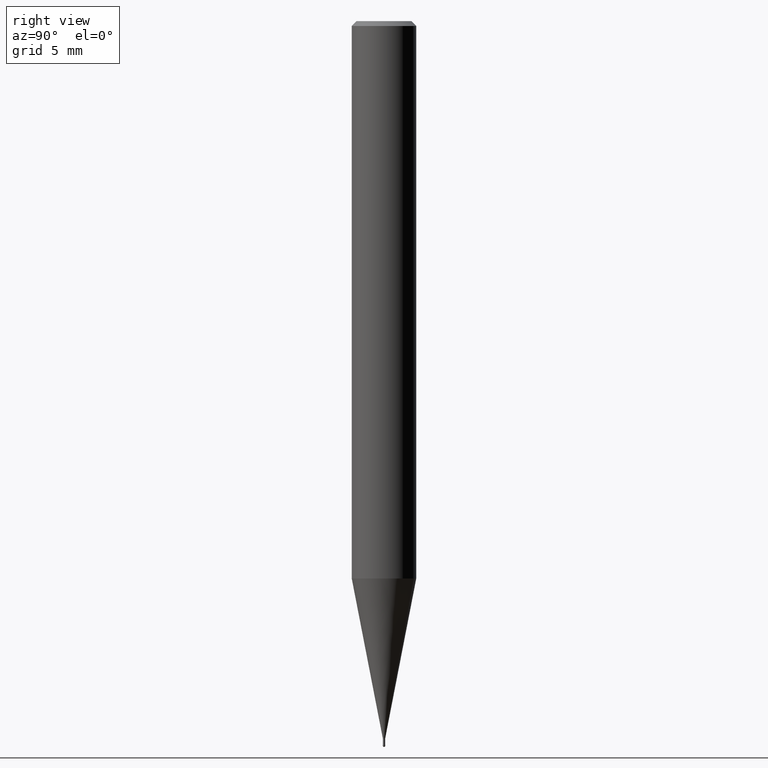
[diagram: clean part render]
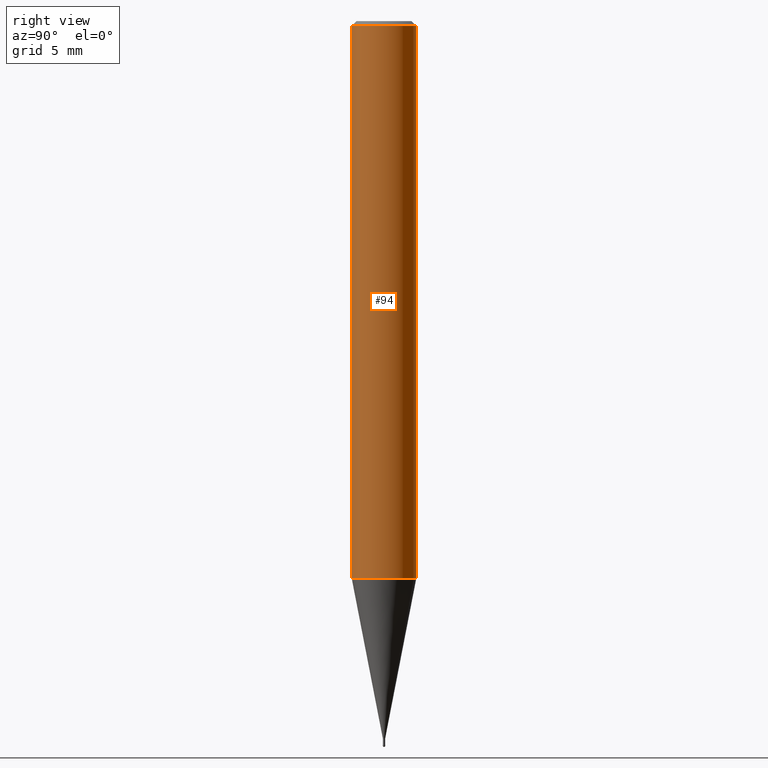
[diagram: same view with one face highlighted and labeled with its STEP entity id]
A machine part, right view. The second image highlights one B-rep face of the part: STEP entity #94.
In plain terms, the highlighted cylindrical surface (edge-blend (fillet) strip) has radius 2 mm, axis along (-0, -0, 1).
Its self-contained STEP definition (entity closure, byte-faithful):
#94=ADVANCED_FACE('',(#235),#236,.T.);
#104=EDGE_CURVE('',#114,#180,#247,.T.);
#114=VERTEX_POINT('',#258);
#138=EDGE_CURVE('',#114,#160,#287,.T.);
#146=EDGE_CURVE('',#204,#160,#296,.T.);
#152=EDGE_CURVE('',#180,#204,#303,.T.);
#160=VERTEX_POINT('',#311);
#180=VERTEX_POINT('',#334);
#204=VERTEX_POINT('',#361);
#235=FACE_OUTER_BOUND('',#385,.T.);
#236=CYLINDRICAL_SURFACE('',#386,2.0);
#247=LINE('',#401,#402);
#258=CARTESIAN_POINT('',(0.0,2.0,-0.299999999999997));
#287=CIRCLE('',#451,2.0);
#296=LINE('',#463,#464);
#303=CIRCLE('',#473,2.0);
#311=CARTESIAN_POINT('',(2.44921270764475E-016,-2.0,-0.299999999999997));
#334=CARTESIAN_POINT('',(0.0,2.0,-34.558));
#361=CARTESIAN_POINT('',(2.44921270764475E-016,-2.0,-34.558));
#385=EDGE_LOOP('',(#560,#561,#562,#563));
#386=AXIS2_PLACEMENT_3D('',#564,#565,#566);
#401=CARTESIAN_POINT('',(-2.44921270764475E-016,2.0,-17.429));
#402=VECTOR('',#584,1.0);
#451=AXIS2_PLACEMENT_3D('',#628,#629,#630);
#463=CARTESIAN_POINT('',(2.44921270764475E-016,-2.0,-17.429));
#464=VECTOR('',#638,1.0);
#473=AXIS2_PLACEMENT_3D('',#650,#651,#652);
#560=ORIENTED_EDGE('',*,*,#104,.F.);
#561=ORIENTED_EDGE('',*,*,#138,.T.);
#562=ORIENTED_EDGE('',*,*,#146,.F.);
#563=ORIENTED_EDGE('',*,*,#152,.F.);
#564=CARTESIAN_POINT('',(0.0,0.0,-17.429));
#565=DIRECTION('',(-0.0,-0.0,1.0));
#566=DIRECTION('',(0.0,1.0,0.0));
#584=DIRECTION('',(0.0,0.0,-1.0));
#628=CARTESIAN_POINT('',(0.0,0.0,-0.299999999999997));
#629=DIRECTION('',(0.0,0.0,-1.0));
#630=DIRECTION('',(0.0,1.0,0.0));
#638=DIRECTION('',(-0.0,-0.0,1.0));
#650=CARTESIAN_POINT('',(0.0,0.0,-34.558));
#651=DIRECTION('',(0.0,0.0,-1.0));
#652=DIRECTION('',(0.0,1.0,0.0));